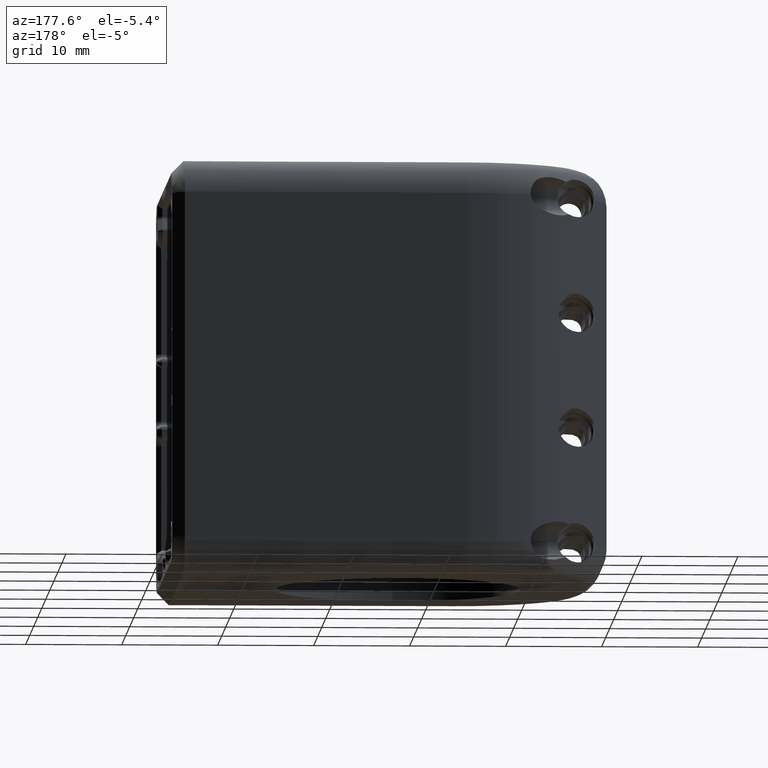
[diagram: clean part render]
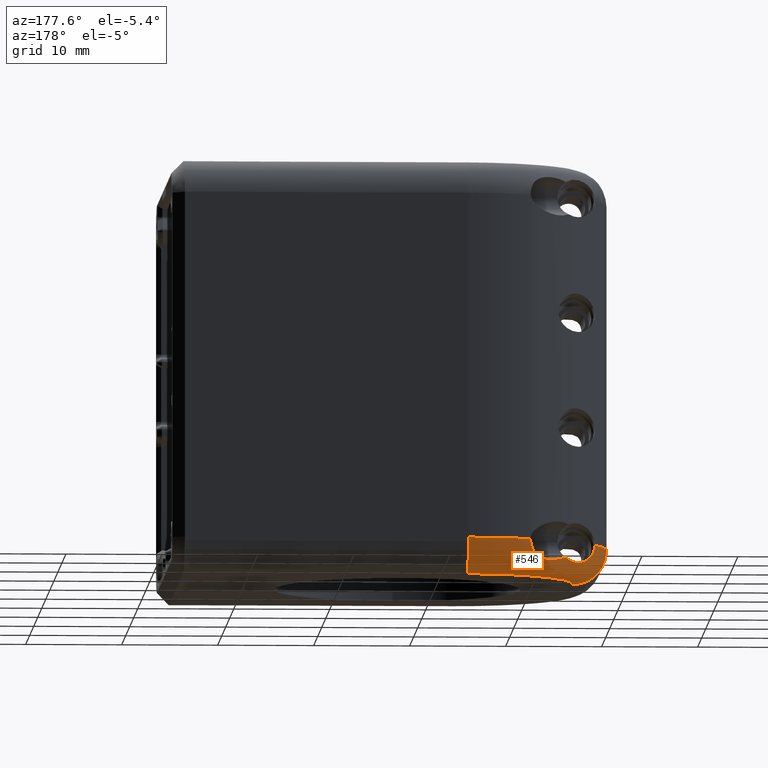
[diagram: same view with one face highlighted and labeled with its STEP entity id]
A machine part, auxiliary view. The second image highlights one B-rep face of the part: STEP entity #546.
In plain terms, the highlighted toroidal blend (fillet) surface has major radius 11.5 mm and minor (blend) radius 3.5 mm.
Its self-contained STEP definition (entity closure, byte-faithful):
#305=TOROIDAL_SURFACE('',#10264,11.5,3.5);
#546=ADVANCED_FACE('',(#975),#305,.T.);
#975=FACE_OUTER_BOUND('',#1453,.F.);
#1453=EDGE_LOOP('',(#2478,#2479,#2480,#2481,#2482,#2483,#2484));
#2478=ORIENTED_EDGE('',*,*,#6890,.F.);
#2479=ORIENTED_EDGE('',*,*,#6837,.F.);
#2480=ORIENTED_EDGE('',*,*,#6494,.F.);
#2481=ORIENTED_EDGE('',*,*,#6466,.F.);
#2482=ORIENTED_EDGE('',*,*,#6839,.F.);
#2483=ORIENTED_EDGE('',*,*,#6891,.T.);
#2484=ORIENTED_EDGE('',*,*,#6856,.T.);
#6029=CIRCLE('',#10002,15.);
#6031=CIRCLE('',#10004,15.);
#6038=CIRCLE('',#10011,11.5);
#6054=CIRCLE('',#10027,3.5);
#6055=CIRCLE('',#10028,3.5);
#6244=B_SPLINE_CURVE_WITH_KNOTS('',3,(#15087,#15088,#15089,#15090,#15091,
#15092,#15093,#15094,#15095,#15096,#15097,#15098,#15099,#15100,#15101,#15102,
#15103,#15104,#15105),.UNSPECIFIED.,.F.,.F.,(4,1,1,1,1,1,1,1,1,1,1,1,1,1,
1,1,4),(0.,0.0446291875396385,0.0770445804833402,0.116803621159024,0.15816642791114,
0.201864064954568,0.248790085644803,0.300031806640694,0.35696968676329,0.421150164000512,
0.49387544845516,0.57519147836962,0.662888769544098,0.752820384483149,0.840413623615433,
0.910269262311111,1.),.UNSPECIFIED.);
#6256=B_SPLINE_CURVE_WITH_KNOTS('',3,(#15303,#15304,#15305,#15306,#15307,
#15308,#15309,#15310,#15311,#15312,#15313,#15314,#15315,#15316,#15317,#15318,
#15319,#15320,#15321),.UNSPECIFIED.,.F.,.F.,(4,1,1,1,1,1,1,1,1,1,1,1,1,1,
1,1,4),(0.,0.0897292661280234,0.159584002338878,0.247175874718248,0.33710594515966,
0.424801901314411,0.506116647864889,0.578849544760955,0.64305797686785,0.700024829116356,
0.751267692624552,0.798153642965319,0.841815478645546,0.883173851181486,
0.922948905027337,0.955374501367581,1.),.UNSPECIFIED.);
#6466=EDGE_CURVE('',#9524,#9531,#6244,.T.);
#6494=EDGE_CURVE('',#9531,#9498,#6256,.T.);
#6837=EDGE_CURVE('',#9498,#9204,#6029,.T.);
#6839=EDGE_CURVE('',#9202,#9524,#6031,.T.);
#6856=EDGE_CURVE('',#9193,#9192,#6038,.T.);
#6890=EDGE_CURVE('',#9204,#9192,#6054,.T.);
#6891=EDGE_CURVE('',#9202,#9193,#6055,.T.);
#9192=VERTEX_POINT('',#13332);
#9193=VERTEX_POINT('',#13333);
#9202=VERTEX_POINT('',#13342);
#9204=VERTEX_POINT('',#13344);
#9498=VERTEX_POINT('',#13638);
#9524=VERTEX_POINT('',#13664);
#9531=VERTEX_POINT('',#13671);
#10002=AXIS2_PLACEMENT_3D('',#15927,#11376,#11377);
#10004=AXIS2_PLACEMENT_3D('',#15929,#11380,#11381);
#10011=AXIS2_PLACEMENT_3D('',#15946,#11404,#11405);
#10027=AXIS2_PLACEMENT_3D('',#15980,#11454,#11455);
#10028=AXIS2_PLACEMENT_3D('',#15981,#11456,#11457);
#10264=AXIS2_PLACEMENT_3D('',#16653,#12364,#12365);
#11376=DIRECTION('',(0.,0.,-1.));
#11377=DIRECTION('',(-0.435890854665811,0.899999534899163,0.));
#11380=DIRECTION('',(0.,0.,-1.));
#11381=DIRECTION('',(-1.,0.,0.));
#11404=DIRECTION('',(0.,0.,-1.));
#11405=DIRECTION('',(-1.,0.,0.));
#11454=DIRECTION('',(-1.,0.,0.));
#11455=DIRECTION('',(0.,1.,0.));
#11456=DIRECTION('',(0.,-1.,0.));
#11457=DIRECTION('',(-1.,0.,0.));
#12364=DIRECTION('',(0.,0.,-1.));
#12365=DIRECTION('',(-0.781831482468033,-0.623489801858729,0.));
#13332=CARTESIAN_POINT('',(166.864999714697,18.0000037170447,-150.00000019205));
#13333=CARTESIAN_POINT('',(155.364999714696,6.50000371704519,-150.00000019205));
#13342=CARTESIAN_POINT('',(151.864999714696,6.50000371704507,-146.50000019205));
#13344=CARTESIAN_POINT('',(166.864999714696,21.5000037170447,-146.50000019205));
#13638=CARTESIAN_POINT('',(160.326654168792,20.0000004844825,-146.500000098565));
#13664=CARTESIAN_POINT('',(153.364993677418,13.0383195183153,-146.499984795391));
#13671=CARTESIAN_POINT('',(156.539122921492,16.8258821393983,-148.119049005522));
#15087=CARTESIAN_POINT('',(153.364983921169,13.0382792294449,-146.499939002587));
#15088=CARTESIAN_POINT('',(153.364966463513,13.0382540551576,-146.589717331855));
#15089=CARTESIAN_POINT('',(153.375439084716,13.0460652716953,-146.744607592459));
#15090=CARTESIAN_POINT('',(153.418002251084,13.0785152205072,-146.9740391275));
#15091=CARTESIAN_POINT('',(153.48217382801,13.1281417216102,-147.188264209055));
#15092=CARTESIAN_POINT('',(153.577806048213,13.2040077522246,-147.40856889609));
#15093=CARTESIAN_POINT('',(153.702224025388,13.3063832141252,-147.620622543357));
#15094=CARTESIAN_POINT('',(153.856542737037,13.4398196037947,-147.821410604393));
#15095=CARTESIAN_POINT('',(154.042220514197,13.6091582117775,-148.007784391676));
#15096=CARTESIAN_POINT('',(154.261212338773,13.8205233858867,-148.175833978717));
#15097=CARTESIAN_POINT('',(154.513242563924,14.0836846297563,-148.317543801283));
#15098=CARTESIAN_POINT('',(154.796427488503,14.4024532410907,-148.425784783882));
#15099=CARTESIAN_POINT('',(155.103083302454,14.7753251345263,-148.491310164419));
#15100=CARTESIAN_POINT('',(155.419544270189,15.1896895862371,-148.507640033852));
#15101=CARTESIAN_POINT('',(155.731373410692,15.6220584425918,-148.474384607558));
#15102=CARTESIAN_POINT('',(156.010554473859,16.0277269489271,-148.399680991577));
#15103=CARTESIAN_POINT('',(156.280064642554,16.430295099681,-148.286046367064));
#15104=CARTESIAN_POINT('',(156.447567196961,16.6853758803532,-148.185422721876));
#15105=CARTESIAN_POINT('',(156.539192826469,16.8259826404896,-148.1190370811));
#15303=CARTESIAN_POINT('',(156.539034511354,16.8258184149174,-148.119045098119));
#15304=CARTESIAN_POINT('',(156.679640621934,16.9174360205494,-148.185436357433));
#15305=CARTESIAN_POINT('',(156.934716721226,17.0849437578563,-148.286049621291));
#15306=CARTESIAN_POINT('',(157.337278769288,17.3544502998626,-148.399681873131));
#15307=CARTESIAN_POINT('',(157.742941788459,17.6336271771654,-148.474384653781));
#15308=CARTESIAN_POINT('',(158.175304068912,17.9454515899886,-148.507639765919));
#15309=CARTESIAN_POINT('',(158.58966184587,18.261909320018,-148.491310480142));
#15310=CARTESIAN_POINT('',(158.962544368263,18.5685663168946,-148.425787934923));
#15311=CARTESIAN_POINT('',(159.281359134688,18.8518097456245,-148.317524164787));
#15312=CARTESIAN_POINT('',(159.544605489927,19.1038945839777,-148.175762873236));
#15313=CARTESIAN_POINT('',(159.756452703605,19.3227920909895,-148.007961112667));
#15314=CARTESIAN_POINT('',(159.925860795537,19.5084760368005,-147.821659812091));
#15315=CARTESIAN_POINT('',(160.058820044707,19.6627929077977,-147.620718056977));
#15316=CARTESIAN_POINT('',(160.160211522282,19.7870872437665,-147.408335436445));
#15317=CARTESIAN_POINT('',(160.23625093364,19.8826817277191,-147.188200007145));
#15318=CARTESIAN_POINT('',(160.286918486875,19.9470715661762,-146.974223229417));
#15319=CARTESIAN_POINT('',(160.319275737943,19.9896404600158,-146.744691749944));
#15320=CARTESIAN_POINT('',(160.326711783602,20.0000229454835,-146.589767271202));
#15321=CARTESIAN_POINT('',(160.326671442789,20.0000042283953,-146.500000215373));
#15927=CARTESIAN_POINT('',(166.864999714696,6.50000371704466,-146.50000019205));
#15929=CARTESIAN_POINT('',(166.864999714696,6.50000371704466,-146.50000019205));
#15946=CARTESIAN_POINT('',(166.864999714696,6.50000371704466,-150.00000019205));
#15980=CARTESIAN_POINT('',(166.864999714696,18.0000037170447,-146.50000019205));
#15981=CARTESIAN_POINT('',(155.364999714696,6.5000037170447,-146.50000019205));
#16653=CARTESIAN_POINT('',(166.864999714696,6.50000371704466,-146.50000019205));